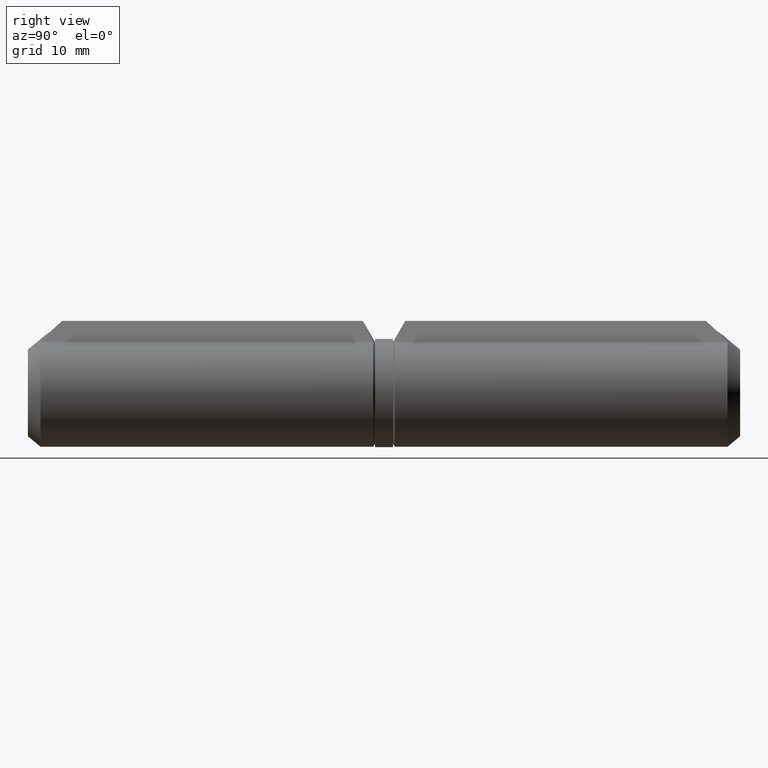
[diagram: clean part render]
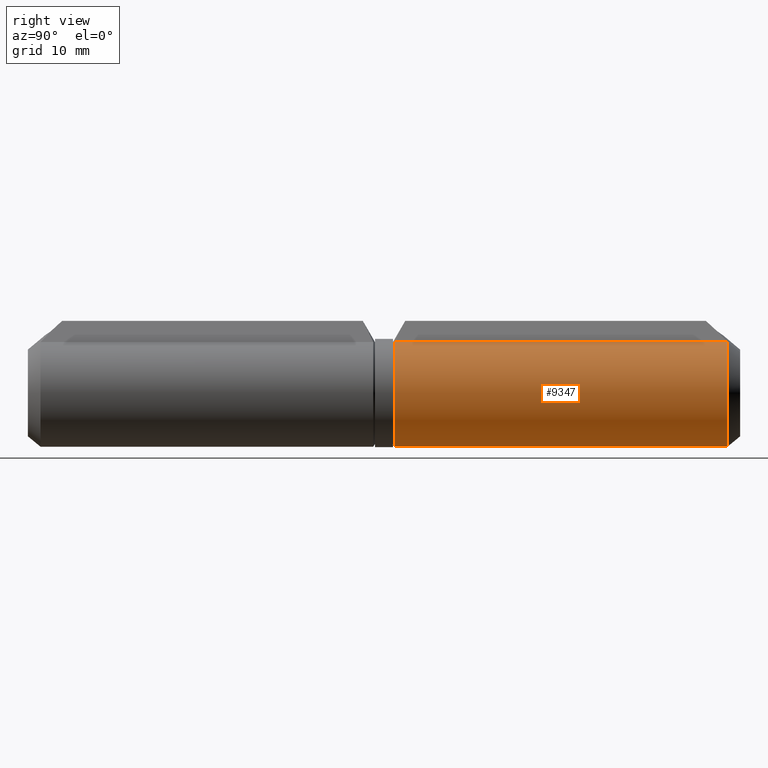
[diagram: same view with one face highlighted and labeled with its STEP entity id]
A machine part, right view. The second image highlights one B-rep face of the part: STEP entity #9347.
In plain terms, the highlighted cylindrical surface (partial cylindrical patch) has radius 6 mm, axis along (0, 1, -0).
Its self-contained STEP definition (entity closure, byte-faithful):
#178 = EDGE_CURVE ( 'NONE', #16435, #11060, #16158, .T. ) ;
#496 = VECTOR ( 'NONE', #17673, 1000.000000000000000 ) ;
#1506 = AXIS2_PLACEMENT_3D ( 'NONE', #11360, #12765, #15312 ) ;
#2234 = VECTOR ( 'NONE', #17530, 1000.000000000000000 ) ;
#2496 = CARTESIAN_POINT ( 'NONE',  ( 2.000000000000000000, -4.635766604146704495, -5.656854249492381470 ) ) ;
#2506 = CARTESIAN_POINT ( 'NONE',  ( 2.000000000000000000, 1.406935711111330756, -5.656854249492381470 ) ) ;
#2780 = ORIENTED_EDGE ( 'NONE', *, *, #178, .T. ) ;
#3791 = AXIS2_PLACEMENT_3D ( 'NONE', #9069, #15689, #7510 ) ;
#3946 = EDGE_CURVE ( 'NONE', #4000, #16435, #17584, .T. ) ;
#4000 = VERTEX_POINT ( 'NONE', #5154 ) ;
#5113 = VERTEX_POINT ( 'NONE', #9737 ) ;
#5154 = CARTESIAN_POINT ( 'NONE',  ( -1.999999999999999556, 1.406935711111329868, -5.656854249492381470 ) ) ;
#5510 = FACE_OUTER_BOUND ( 'NONE', #12414, .T. ) ;
#5867 = EDGE_CURVE ( 'NONE', #11060, #5113, #8603, .T. ) ;
#7463 = CYLINDRICAL_SURFACE ( 'NONE', #1506, 6.000000000000000888 ) ;
#7510 = DIRECTION ( 'NONE',  ( 0.000000000000000000, 0.000000000000000000, 1.000000000000000000 ) ) ;
#7842 = ORIENTED_EDGE ( 'NONE', *, *, #3946, .T. ) ;
#8603 = CIRCLE ( 'NONE', #12876, 6.000000000000000888 ) ;
#9066 = DIRECTION ( 'NONE',  ( -0.000000000000000000, -1.000000000000000000, -0.000000000000000000 ) ) ;
#9069 = CARTESIAN_POINT ( 'NONE',  ( 0.000000000000000000, 1.406935711111329423, 2.546189710307992062E-18 ) ) ;
#9238 = DIRECTION ( 'NONE',  ( 0.000000000000000000, 0.000000000000000000, -1.000000000000000000 ) ) ;
#9347 = ADVANCED_FACE ( 'NONE', ( #5510 ), #7463, .T. ) ;
#9500 = CARTESIAN_POINT ( 'NONE',  ( 2.000000000000000000, 38.30188470857315508, -5.656854249492381470 ) ) ;
#9737 = CARTESIAN_POINT ( 'NONE',  ( -1.999999999999891198, 38.30188470857322613, -5.656854249492551112 ) ) ;
#10294 = ORIENTED_EDGE ( 'NONE', *, *, #16050, .F. ) ;
#10323 = ORIENTED_EDGE ( 'NONE', *, *, #5867, .T. ) ;
#10607 = CARTESIAN_POINT ( 'NONE',  ( 0.000000000000000000, 38.30188470857315508, 0.000000000000000000 ) ) ;
#11060 = VERTEX_POINT ( 'NONE', #9500 ) ;
#11360 = CARTESIAN_POINT ( 'NONE',  ( 0.000000000000000000, 38.50000000000000000, 0.000000000000000000 ) ) ;
#12414 = EDGE_LOOP ( 'NONE', ( #2780, #10323, #10294, #7842 ) ) ;
#12763 = LINE ( 'NONE', #14921, #496 ) ;
#12765 = DIRECTION ( 'NONE',  ( -0.000000000000000000, -1.000000000000000000, -0.000000000000000000 ) ) ;
#12876 = AXIS2_PLACEMENT_3D ( 'NONE', #10607, #9066, #9238 ) ;
#14921 = CARTESIAN_POINT ( 'NONE',  ( -2.000000000000000000, -4.635766604146704495, -5.656854249492380582 ) ) ;
#15312 = DIRECTION ( 'NONE',  ( 0.000000000000000000, 0.000000000000000000, -1.000000000000000000 ) ) ;
#15689 = DIRECTION ( 'NONE',  ( 0.000000000000000000, 1.000000000000000000, 1.809741333736402930E-18 ) ) ;
#16050 = EDGE_CURVE ( 'NONE', #4000, #5113, #12763, .T. ) ;
#16158 = LINE ( 'NONE', #2496, #2234 ) ;
#16435 = VERTEX_POINT ( 'NONE', #2506 ) ;
#17530 = DIRECTION ( 'NONE',  ( 0.000000000000000000, 1.000000000000000000, 0.000000000000000000 ) ) ;
#17584 = CIRCLE ( 'NONE', #3791, 6.000000000000000888 ) ;
#17673 = DIRECTION ( 'NONE',  ( 0.000000000000000000, 1.000000000000000000, 0.000000000000000000 ) ) ;